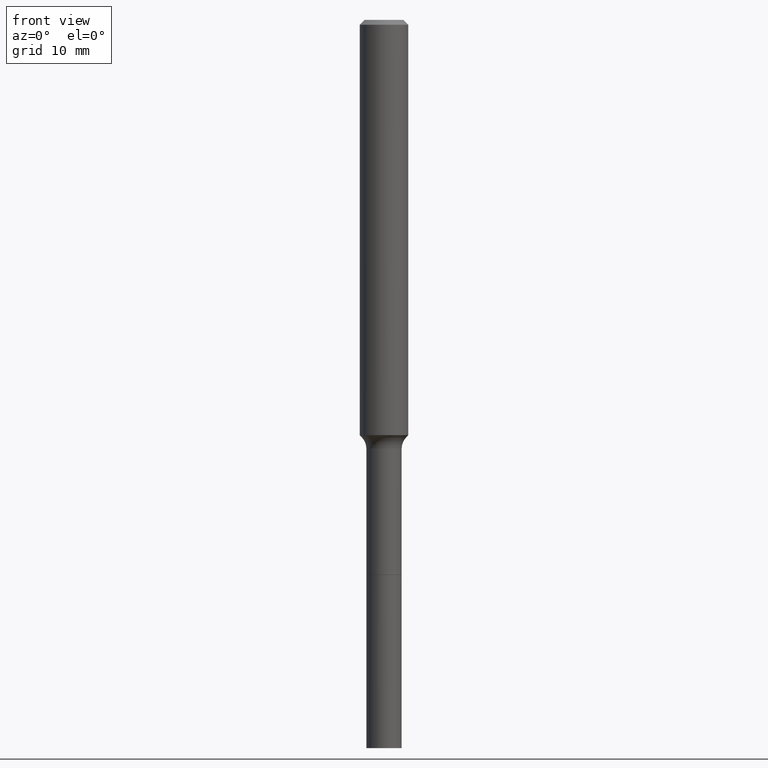
[diagram: clean part render]
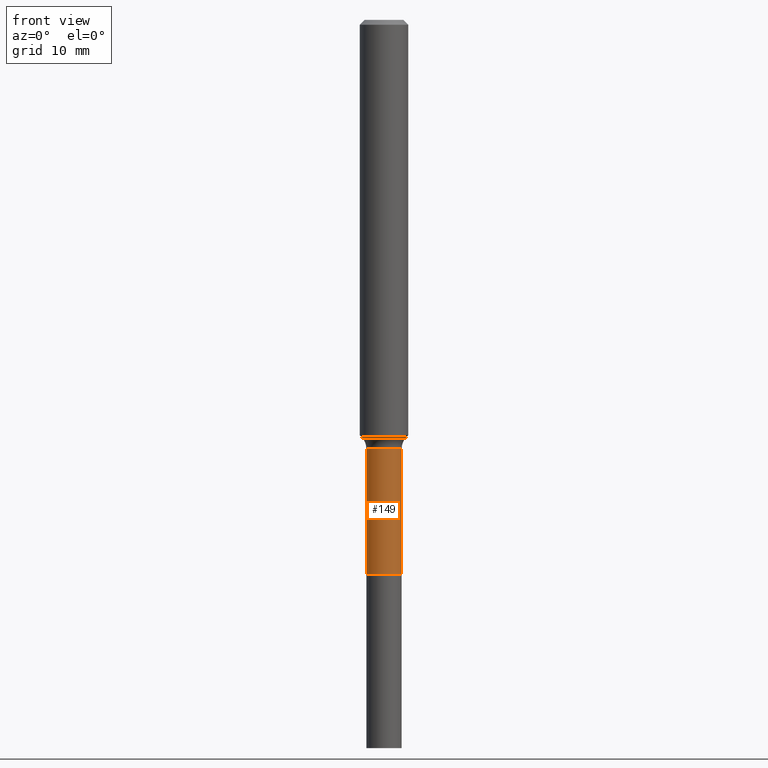
[diagram: same view with one face highlighted and labeled with its STEP entity id]
A machine part, front view. The second image highlights one B-rep face of the part: STEP entity #149.
In plain terms, the highlighted cylindrical surface (edge-blend (fillet) strip) has radius 2.1831 mm, axis along (-0, 0, 1).
Its self-contained STEP definition (entity closure, byte-faithful):
#4 = CARTESIAN_POINT ( 'NONE',  ( -0.08594999999999998475, -7.742832195863360174E-15, -2.698799999999999422 ) ) ;
#7 = VECTOR ( 'NONE', #58, 39.37007874015748143 ) ;
#35 = ORIENTED_EDGE ( 'NONE', *, *, #387, .T. ) ;
#44 = CARTESIAN_POINT ( 'NONE',  ( 0.08594999999999992923, -7.884463159375587951E-15, -2.086299999999999599 ) ) ;
#49 = DIRECTION ( 'NONE',  ( -2.445468806185136597E-29, 3.491481338843145583E-15, 1.000000000000000000 ) ) ;
#58 = DIRECTION ( 'NONE',  ( -2.445468806185136877E-29, 3.491481338843145188E-15, 1.000000000000000000 ) ) ;
#85 = CARTESIAN_POINT ( 'NONE',  ( 5.101981570344049922E-29, -7.284277517228453725E-15, -2.086299999999999599 ) ) ;
#93 = DIRECTION ( 'NONE',  ( -2.445468806185136877E-29, 3.491481338843145188E-15, 1.000000000000000000 ) ) ;
#94 = DIRECTION ( 'NONE',  ( -2.445468806185136597E-29, 3.491481338843145583E-15, 1.000000000000000000 ) ) ;
#101 = AXIS2_PLACEMENT_3D ( 'NONE', #219, #94, #333 ) ;
#109 = VERTEX_POINT ( 'NONE', #372 ) ;
#123 = ORIENTED_EDGE ( 'NONE', *, *, #193, .T. ) ;
#124 = CIRCLE ( 'NONE', #232, 0.08594999999999992923 ) ;
#149 = ADVANCED_FACE ( 'NONE', ( #495 ), #290, .T. ) ;
#156 = VERTEX_POINT ( 'NONE', #4 ) ;
#181 = CARTESIAN_POINT ( 'NONE',  ( -0.08594999999999995699, 6.107114813858058042E-16, -4.227824710074089488E-30 ) ) ;
#188 = ORIENTED_EDGE ( 'NONE', *, *, #348, .F. ) ;
#193 = EDGE_CURVE ( 'NONE', #109, #277, #446, .T. ) ;
#219 = CARTESIAN_POINT ( 'NONE',  ( 6.599831214132445864E-29, -9.422809837269878427E-15, -2.698799999999999422 ) ) ;
#232 = AXIS2_PLACEMENT_3D ( 'NONE', #85, #248, #479 ) ;
#248 = DIRECTION ( 'NONE',  ( -2.445468806185136597E-29, 3.491481338843145583E-15, 1.000000000000000000 ) ) ;
#257 = CARTESIAN_POINT ( 'NONE',  ( -0.08594999999999992923, -7.742832195863361751E-15, -2.086299999999999599 ) ) ;
#263 = LINE ( 'NONE', #181, #7 ) ;
#277 = VERTEX_POINT ( 'NONE', #44 ) ;
#290 = CYLINDRICAL_SURFACE ( 'NONE', #460, 0.08594999999999995699 ) ;
#298 = CARTESIAN_POINT ( 'NONE',  ( 0.08594999999999995699, -6.001856421471342262E-16, 4.191073938796604437E-30 ) ) ;
#325 = DIRECTION ( 'NONE',  ( 1.000000000000000000, -6.982962677686265922E-15, 4.876176775795935232E-29 ) ) ;
#332 = CARTESIAN_POINT ( 'NONE',  ( 0.000000000000000000, 0.000000000000000000, 0.000000000000000000 ) ) ;
#333 = DIRECTION ( 'NONE',  ( 1.000000000000000000, -6.982962677686273810E-15, 0.000000000000000000 ) ) ;
#348 = EDGE_CURVE ( 'NONE', #468, #277, #124, .T. ) ;
#352 = EDGE_LOOP ( 'NONE', ( #429, #35, #123, #188 ) ) ;
#371 = VECTOR ( 'NONE', #93, 39.37007874015748143 ) ;
#372 = CARTESIAN_POINT ( 'NONE',  ( 0.08594999999999998475, -1.002299547941701423E-14, -2.698799999999999422 ) ) ;
#387 = EDGE_CURVE ( 'NONE', #156, #109, #436, .T. ) ;
#429 = ORIENTED_EDGE ( 'NONE', *, *, #470, .F. ) ;
#436 = CIRCLE ( 'NONE', #101, 0.08594999999999998475 ) ;
#446 = LINE ( 'NONE', #298, #371 ) ;
#460 = AXIS2_PLACEMENT_3D ( 'NONE', #332, #49, #325 ) ;
#468 = VERTEX_POINT ( 'NONE', #257 ) ;
#470 = EDGE_CURVE ( 'NONE', #156, #468, #263, .T. ) ;
#479 = DIRECTION ( 'NONE',  ( 1.000000000000000000, -6.982962677686266711E-15, 0.000000000000000000 ) ) ;
#495 = FACE_OUTER_BOUND ( 'NONE', #352, .T. ) ;